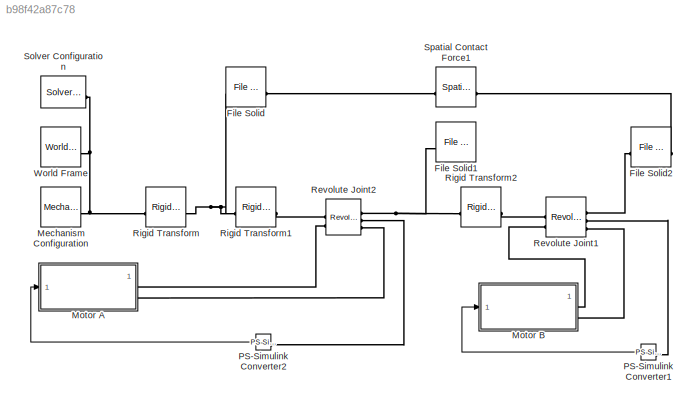
MODEL slx_b98f42a87c78
KIND model
CONFIG AbsTol = auto
CONFIG EnableMultiTasking = off
CONFIG FixedStep = auto
CONFIG MaxStep = auto
CONFIG MinStep = auto
CONFIG RelTol = 1e-3
CONFIG SampleTimeConstraint = Unconstrained
CONFIG SolverName = VariableStepAuto
CONFIG StartTime = 0.0
CONFIG StopTime = 10.0
BLOCK [Reference] File Solid  REF=sm_lib/Body Elements/File Solid
  NameLocation = top
  SourceBlock = sm_lib/Body Elements/File Solid
  SourceType = File Solid
BLOCK [Reference] File Solid1  REF=sm_lib/Body Elements/File Solid
  NameLocation = top
  SourceBlock = sm_lib/Body Elements/File Solid
  SourceType = File Solid
BLOCK [Reference] File Solid2  REF=sm_lib/Body Elements/File Solid
  NameLocation = top
  SourceBlock = sm_lib/Body Elements/File Solid
  SourceType = File Solid
BLOCK [Reference] Mechanism Configuration  REF=sm_lib/Utilities/Mechanism
Configuration
  SourceBlock = sm_lib/Utilities/Mechanism\nConfiguration
  SourceType = Mechanism\nConfiguration
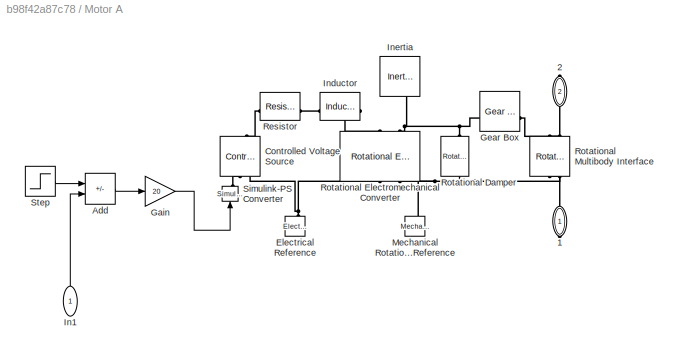
BLOCK [SubSystem] Motor A
BLOCK [PMIOPort] Motor A/1
  NameLocation = right
  Side = Right
BLOCK [PMIOPort] Motor A/2
  NameLocation = left
  Port = 2
  Side = Right
BLOCK [Sum] Motor A/Add
  IconShape = rectangular
  Inputs = +-
BLOCK [Reference] Motor A/Controlled Voltage Source  REF=fl_lib/Electrical/Electrical Sources/Controlled Voltage
Source
  NameLocation = right
  SourceBlock = fl_lib/Electrical/Electrical Sources/Controlled Voltage\nSource
  SourceType = Controlled Voltage\nSource
BLOCK [Reference] Motor A/Electrical Reference  REF=fl_lib/Electrical/Electrical Elements/Electrical Reference
  NameLocation = right
  SourceBlock = fl_lib/Electrical/Electrical Elements/Electrical Reference
  SourceType = Electrical Reference
BLOCK [Gain] Motor A/Gain
  Gain = 20
BLOCK [Reference] Motor A/Gear Box  REF=fl_lib/Mechanical/Mechanisms/Gear Box
  SourceBlock = fl_lib/Mechanical/Mechanisms/Gear Box
  SourceType = Gear Box
BLOCK [Inport] Motor A/In1
  NameLocation = right
BLOCK [Reference] Motor A/Inductor  REF=fl_lib/Electrical/Electrical Elements/Inductor
  SourceBlock = fl_lib/Electrical/Electrical Elements/Inductor
  SourceType = Inductor
BLOCK [Reference] Motor A/Inertia  REF=fl_lib/Mechanical/Rotational Elements/Inertia
  NameLocation = left
  SourceBlock = fl_lib/Mechanical/Rotational Elements/Inertia
  SourceType = Inertia
BLOCK [Reference] Motor A/Mechanical Rotational Reference  REF=fl_lib/Mechanical/Rotational Elements/Mechanical
Rotational Reference
  NameLocation = right
  SourceBlock = fl_lib/Mechanical/Rotational Elements/Mechanical\nRotational Reference
  SourceType = Mechanical\nRotational Reference
BLOCK [Reference] Motor A/Resistor  REF=fl_lib/Electrical/Electrical Elements/Resistor
  SourceBlock = fl_lib/Electrical/Electrical Elements/Resistor
  SourceType = Resistor
BLOCK [Reference] Motor A/Rotational Damper  REF=fl_lib/Mechanical/Rotational Elements/Rotational Damper
  NameLocation = left
  SourceBlock = fl_lib/Mechanical/Rotational Elements/Rotational Damper
  SourceType = Rotational Damper
BLOCK [Reference] Motor A/Rotational Electromechanical Converter  REF=fl_lib/Electrical/Electrical Elements/Rotational
Electromechanical
Converter
  NameLocation = right
  SourceBlock = fl_lib/Electrical/Electrical Elements/Rotational\nElectromechanical\nConverter
  SourceType = Rotational\nElectromechanical\nConverter
BLOCK [Reference] Motor A/Rotational Multibody Interface  REF=fl_lib/Mechanical/Multibody Interfaces/Rotational Multibody
Interface
  NameLocation = right
  SourceBlock = fl_lib/Mechanical/Multibody Interfaces/Rotational Multibody\nInterface
  SourceType = Rotational Multibody\nInterface
BLOCK [Reference] Motor A/Simulink-PS Converter  REF=nesl_utility/Simulink-PS
Converter
  NameLocation = right
  SourceBlock = nesl_utility/Simulink-PS\nConverter
  SourceType = Simulink-PS\nConverter
BLOCK [Step] Motor A/Step
  After = 0
  Before = 1
  SampleTime = 0
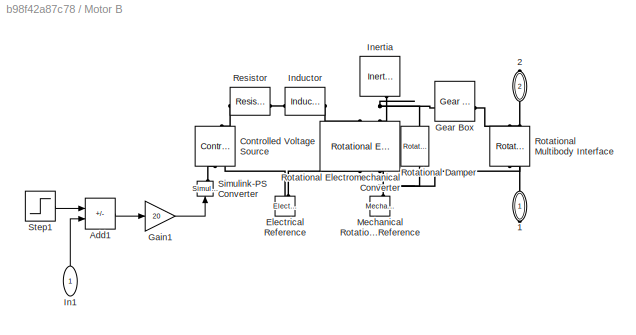
BLOCK [SubSystem] Motor B
BLOCK [PMIOPort] Motor B/1
  NameLocation = right
  Side = Right
BLOCK [PMIOPort] Motor B/2
  NameLocation = left
  Port = 2
  Side = Right
BLOCK [Sum] Motor B/Add1
  IconShape = rectangular
  Inputs = +-
BLOCK [Reference] Motor B/Controlled Voltage Source  REF=fl_lib/Electrical/Electrical Sources/Controlled Voltage
Source
  NameLocation = right
  SourceBlock = fl_lib/Electrical/Electrical Sources/Controlled Voltage\nSource
  SourceType = Controlled Voltage\nSource
BLOCK [Reference] Motor B/Electrical Reference  REF=fl_lib/Electrical/Electrical Elements/Electrical Reference
  NameLocation = right
  SourceBlock = fl_lib/Electrical/Electrical Elements/Electrical Reference
  SourceType = Electrical Reference
BLOCK [Gain] Motor B/Gain1
  Gain = 20
BLOCK [Reference] Motor B/Gear Box  REF=fl_lib/Mechanical/Mechanisms/Gear Box
  SourceBlock = fl_lib/Mechanical/Mechanisms/Gear Box
  SourceType = Gear Box
BLOCK [Inport] Motor B/In1
  NameLocation = right
BLOCK [Reference] Motor B/Inductor  REF=fl_lib/Electrical/Electrical Elements/Inductor
  SourceBlock = fl_lib/Electrical/Electrical Elements/Inductor
  SourceType = Inductor
BLOCK [Reference] Motor B/Inertia  REF=fl_lib/Mechanical/Rotational Elements/Inertia
  NameLocation = left
  SourceBlock = fl_lib/Mechanical/Rotational Elements/Inertia
  SourceType = Inertia
BLOCK [Reference] Motor B/Mechanical Rotational Reference  REF=fl_lib/Mechanical/Rotational Elements/Mechanical
Rotational Reference
  NameLocation = right
  SourceBlock = fl_lib/Mechanical/Rotational Elements/Mechanical\nRotational Reference
  SourceType = Mechanical\nRotational Reference
BLOCK [Reference] Motor B/Resistor  REF=fl_lib/Electrical/Electrical Elements/Resistor
  SourceBlock = fl_lib/Electrical/Electrical Elements/Resistor
  SourceType = Resistor
BLOCK [Reference] Motor B/Rotational Damper  REF=fl_lib/Mechanical/Rotational Elements/Rotational Damper
  NameLocation = left
  SourceBlock = fl_lib/Mechanical/Rotational Elements/Rotational Damper
  SourceType = Rotational Damper
BLOCK [Reference] Motor B/Rotational Electromechanical Converter  REF=fl_lib/Electrical/Electrical Elements/Rotational
Electromechanical
Converter
  NameLocation = right
  SourceBlock = fl_lib/Electrical/Electrical Elements/Rotational\nElectromechanical\nConverter
  SourceType = Rotational\nElectromechanical\nConverter
BLOCK [Reference] Motor B/Rotational Multibody Interface  REF=fl_lib/Mechanical/Multibody Interfaces/Rotational Multibody
Interface
  NameLocation = right
  SourceBlock = fl_lib/Mechanical/Multibody Interfaces/Rotational Multibody\nInterface
  SourceType = Rotational Multibody\nInterface
BLOCK [Reference] Motor B/Simulink-PS Converter  REF=nesl_utility/Simulink-PS
Converter
  NameLocation = right
  SourceBlock = nesl_utility/Simulink-PS\nConverter
  SourceType = Simulink-PS\nConverter
BLOCK [Step] Motor B/Step1
  After = 0
  Before = 1
  SampleTime = 0
BLOCK [Reference] PS-Simulink Converter1  REF=nesl_utility/PS-Simulink
Converter
  NameLocation = top
  SourceBlock = nesl_utility/PS-Simulink\nConverter
  SourceType = PS-Simulink\nConverter
BLOCK [Reference] PS-Simulink Converter2  REF=nesl_utility/PS-Simulink
Converter
  NameLocation = top
  SourceBlock = nesl_utility/PS-Simulink\nConverter
  SourceType = PS-Simulink\nConverter
BLOCK [Reference] Revolute Joint1  REF=sm_lib/Joints/Revolute Joint
  SourceBlock = sm_lib/Joints/Revolute Joint
  SourceType = Revolute Joint
BLOCK [Reference] Revolute Joint2  REF=sm_lib/Joints/Revolute Joint
  SourceBlock = sm_lib/Joints/Revolute Joint
  SourceType = Revolute Joint
BLOCK [Reference] Rigid Transform  REF=sm_lib/Frames and
Transforms/Rigid
Transform
  SourceBlock = sm_lib/Frames and\nTransforms/Rigid\nTransform
  SourceType = Rigid\nTransform
BLOCK [Reference] Rigid Transform1  REF=sm_lib/Frames and
Transforms/Rigid
Transform
  SourceBlock = sm_lib/Frames and\nTransforms/Rigid\nTransform
  SourceType = Rigid\nTransform
BLOCK [Reference] Rigid Transform2  REF=sm_lib/Frames and
Transforms/Rigid
Transform
  SourceBlock = sm_lib/Frames and\nTransforms/Rigid\nTransform
  SourceType = Rigid\nTransform
BLOCK [Reference] Solver Configuration  REF=nesl_utility/Solver
Configuration
  SourceBlock = nesl_utility/Solver\nConfiguration
  SourceType = Solver\nConfiguration
BLOCK [Reference] Spatial Contact Force1  REF=sm_lib/Forces and
Torques/Spatial
Contact Force
  SourceBlock = sm_lib/Forces and\nTorques/Spatial\nContact Force
  SourceType = Spatial\nContact Force
BLOCK [Reference] World Frame  REF=sm_lib/Frames and
Transforms/World Frame
  SourceBlock = sm_lib/Frames and\nTransforms/World Frame
  SourceType = World Frame
LINE Motor A/Add:1 -> Motor A/Gain:1
LINE Motor A/Gain:1 -> Motor A/Simulink-PS Converter:1
LINE Motor A/In1:1 -> Motor A/Add:2
LINE Motor A/Step:1 -> Motor A/Add:1
LINE Motor B/Add1:1 -> Motor B/Gain1:1
LINE Motor B/Gain1:1 -> Motor B/Simulink-PS Converter:1
LINE Motor B/In1:1 -> Motor B/Add1:2
LINE Motor B/Step1:1 -> Motor B/Add1:1
LINE PS-Simulink Converter1:1 -> Motor B:1
LINE PS-Simulink Converter2:1 -> Motor A:1
PNET net1: File Solid1:RConn1 -- Revolute Joint2:RConn1 -- Rigid Transform2:LConn1
PLINE File Solid2:LConn1 -- Spatial Contact Force1:LConn1
PLINE File Solid2:RConn1 -- Revolute Joint1:RConn1
PLINE File Solid:LConn1 -- Spatial Contact Force1:RConn1
PNET net2: File Solid:RConn1 -- Rigid Transform1:LConn1 -- Rigid Transform:RConn1
PNET net3: Mechanism Configuration:RConn1 -- Rigid Transform:LConn1 -- Solver Configuration:RConn1 -- World Frame:RConn1
PLINE Motor A/1:RConn1 -- Motor A/Rotational Multibody Interface:LConn1
PLINE Motor A/2:RConn1 -- Motor A/Rotational Multibody Interface:RConn1
PLINE Motor A/Controlled Voltage Source:LConn1 -- Motor A/Resistor:LConn1
PLINE Motor A/Controlled Voltage Source:RConn1 -- Motor A/Simulink-PS Converter:RConn1
PNET net4: Motor A/Controlled Voltage Source:RConn2 -- Motor A/Electrical Reference:LConn1 -- Motor A/Rotational Electromechanical Converter:RConn1
PNET net5: Motor A/Gear Box:LConn1 -- Motor A/Inertia:LConn1 -- Motor A/Rotational Damper:LConn1 -- Motor A/Rotational Electromechanical Converter:LConn2
PLINE Motor A/Gear Box:RConn1 -- Motor A/Rotational Multibody Interface:RConn2
PLINE Motor A/Inductor:LConn1 -- Motor A/Resistor:RConn1
PLINE Motor A/Inductor:RConn1 -- Motor A/Rotational Electromechanical Converter:LConn1
PNET net6: Motor A/Mechanical Rotational Reference:LConn1 -- Motor A/Rotational Damper:RConn1 -- Motor A/Rotational Electromechanical Converter:RConn2 -- Motor A/Rotational Multibody Interface:LConn2
PLINE Motor A:RConn1 -- Revolute Joint2:LConn2
PLINE Motor A:RConn2 -- Revolute Joint2:RConn3
PLINE Motor B/1:RConn1 -- Motor B/Rotational Multibody Interface:LConn1
PLINE Motor B/2:RConn1 -- Motor B/Rotational Multibody Interface:RConn1
PLINE Motor B/Controlled Voltage Source:LConn1 -- Motor B/Resistor:LConn1
PLINE Motor B/Controlled Voltage Source:RConn1 -- Motor B/Simulink-PS Converter:RConn1
PNET net7: Motor B/Controlled Voltage Source:RConn2 -- Motor B/Electrical Reference:LConn1 -- Motor B/Rotational Electromechanical Converter:RConn1
PNET net8: Motor B/Gear Box:LConn1 -- Motor B/Inertia:LConn1 -- Motor B/Rotational Damper:LConn1 -- Motor B/Rotational Electromechanical Converter:LConn2
PLINE Motor B/Gear Box:RConn1 -- Motor B/Rotational Multibody Interface:RConn2
PLINE Motor B/Inductor:LConn1 -- Motor B/Resistor:RConn1
PLINE Motor B/Inductor:RConn1 -- Motor B/Rotational Electromechanical Converter:LConn1
PNET net9: Motor B/Mechanical Rotational Reference:LConn1 -- Motor B/Rotational Damper:RConn1 -- Motor B/Rotational Electromechanical Converter:RConn2 -- Motor B/Rotational Multibody Interface:LConn2
PLINE Motor B:RConn1 -- Revolute Joint1:LConn2
PLINE Motor B:RConn2 -- Revolute Joint1:RConn3
PLINE PS-Simulink Converter1:LConn1 -- Revolute Joint1:RConn2
PLINE PS-Simulink Converter2:LConn1 -- Revolute Joint2:RConn2
PLINE Revolute Joint1:LConn1 -- Rigid Transform2:RConn1
PLINE Revolute Joint2:LConn1 -- Rigid Transform1:RConn1
note: PNET lines group multi-terminal physical nets as a canonical sorted terminal list (undirected conserving connections); 2-terminal nets keep the pairwise PLINE form
